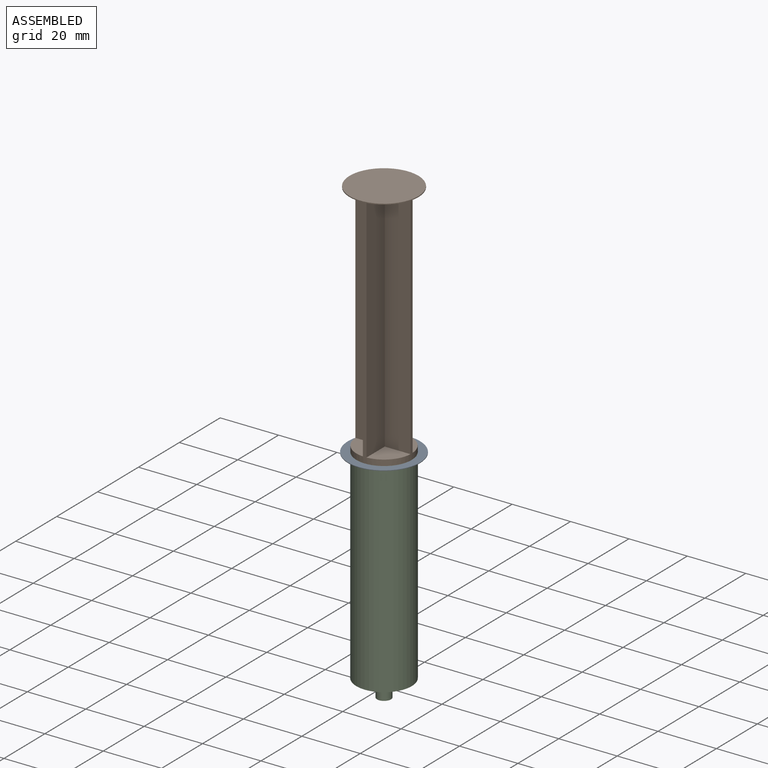
[diagram: assembled view]
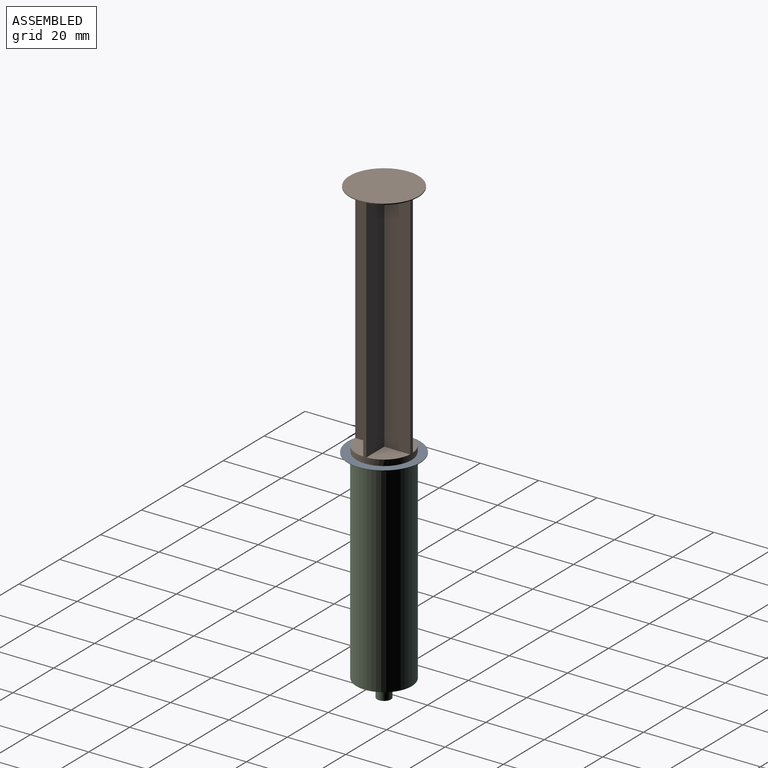
[diagram: assembled view, second angle]
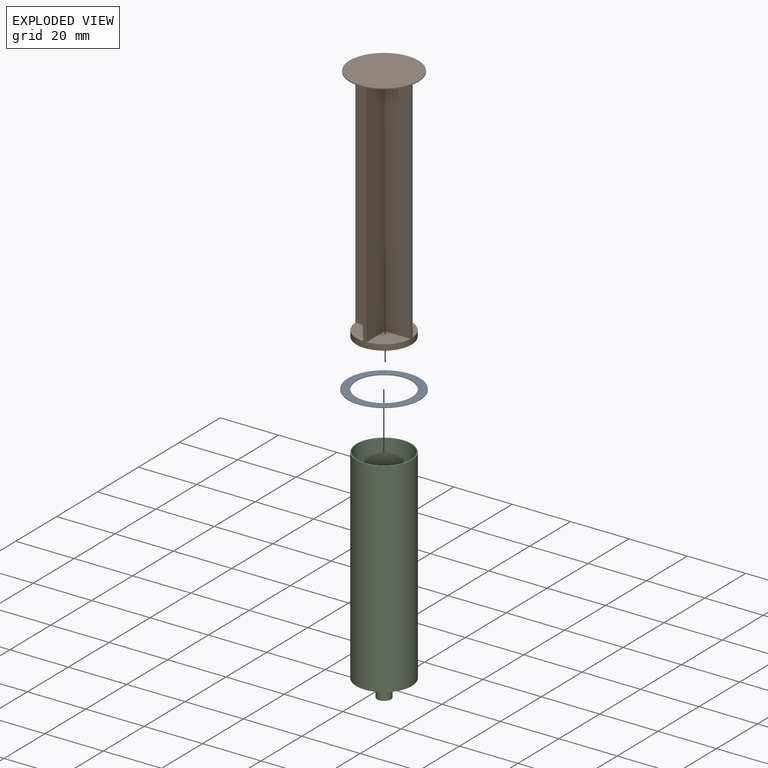
[diagram: exploded view]
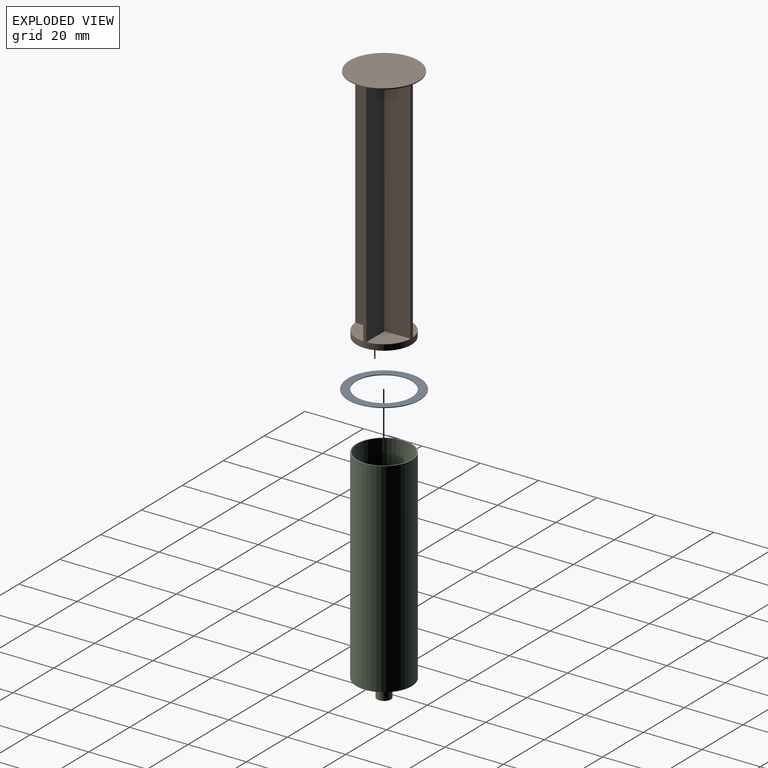
[diagram: exploded view, second angle]
ASSEMBLY  parts=3 mates=2
PART A: 4 faces, bbox 24.7x0.2x24.7 mm
  f0: cylinder r=9.5mm len=19mm, axis (0,1,0), area 11.9mm2, adj f2,f3
  f1: cylinder r=12.34mm len=24.68mm, axis (0,1,0), area 15.5mm2, adj f2,f3
  f2: plane 24.68x24.68mm, normal (0,-1,0), area 195mm2, adj f0,f1
  f3: plane 24.68x24.68mm, normal (0,1,0), area 195mm2, adj f0,f1
PART B: 23 faces, bbox 23.6x23.6x82.3 mm
  f0: plane 8.9x8.8mm, normal (0,0,-1), area 59.5mm2, adj f5,f11,f12
  f1: plane 1.21x0.02mm, normal (0,0,-1), area 0mm2, adj f5,f13
  f2: plane 1.05x0.01mm, normal (0,0,-1), area 0mm2, adj f5,f10
  f3: plane 9.96x8.85mm, normal (0,0,-1), area 59.8mm2, adj f5,f14,f15,f16
  f4: plane 8.9x8.8mm, normal (0,0,-1), area 59.5mm2, adj f5,f8,f9
  f5: cylinder r=9.45mm len=82mm, axis (0,0,-1), area 121.8mm2, adj f0,f1,f2,f3,f4,f6,f7,f9
  f6: plane 18.9x18.9mm, normal (0,0,1), area 280.6mm2, adj f5
  f7: plane 10.07x8.92mm, normal (0,0,-1), area 59.8mm2, adj f5,f17,f18,f19
  f8: plane 80x8.9mm, normal (-1,0,0), area 712mm2, adj f4,f9,f19,f20
  f9: plane 80x8.8mm, normal (0,-1,0), area 703.8mm2, adj f4,f5,f8,f20
  f10: plane 80x1.05mm, normal (-1,0,0), area 84.2mm2, adj f2,f5,f11,f20
  f11: plane 80x8.8mm, normal (0,1,0), area 703.8mm2, adj f0,f10,f12,f20
  f12: plane 80x8.9mm, normal (-1,0,0), area 712.2mm2, adj f0,f5,f11,f20
  f13: plane 80x1.21mm, normal (0,1,0), area 96.4mm2, adj f1,f5,f14,f20
  f14: plane 80x8.9mm, normal (1,0,0), area 712.4mm2, adj f3,f13,f15,f20
  f15: plane 80x8.83mm, normal (0,1,0), area 706.6mm2, adj f3,f14,f16,f20
  f16: plane 80x1.05mm, normal (1,0,0), area 84.4mm2, adj f3,f15,f17,f20
  f17: plane 80x8.83mm, normal (0,-1,0), area 706.6mm2, adj f7,f16,f18,f20
  f18: plane 80x8.9mm, normal (1,0,0), area 712mm2, adj f7,f17,f19,f20
  f19: plane 80x1.24mm, normal (0,-1,0), area 99.3mm2, adj f7,f8,f18,f20
  f20: plane 23.61x23.61mm, normal (0,0,1), area 395.6mm2, adj f5,f8,f9,f10,f11,f12,f13,f14
  f21: cylinder r=11.8mm len=23.61mm, axis (0,0,1), area 22.2mm2, adj f20,f22
  f22: plane 23.61x23.61mm, normal (0,0,-1), area 437.6mm2, adj f21
PART C: 8 faces, bbox 19x76x19 mm
  f0: cylinder r=9.5mm len=70mm, axis (0,1,0), area 4178.3mm2, adj f1,f2
  f1: plane 19x19mm, normal (0,-1,0), area 17.6mm2, adj f0,f3
  f2: plane 19x19mm, normal (0,1,0), area 265.6mm2, adj f0,f5
  f3: cylinder r=9.2mm len=68mm, axis (0,-1,0), area 3930.8mm2, adj f1,f4
  f4: plane 18.4x18.4mm, normal (0,-1,0), area 250.8mm2, adj f3,f7
  f5: cylinder r=2.39mm len=6mm, axis (0,-1,0), area 90mm2, adj f2,f6
  f6: plane 4.77x4.77mm, normal (0,1,0), area 2.8mm2, adj f5,f7
  f7: cylinder r=2.19mm len=8mm, axis (0,1,0), area 110.1mm2, adj f4,f6
PLACE A rot(axis=(-1,0,0),90deg) t=(-12.91,30.09,-15.27)mm
PLACE B rot(axis=(1,0,0),180deg) t=(-12.91,30.09,56.93)mm
PLACE C rot(axis=(-1,0,0),90deg) t=(-12.91,30.09,-15.07)mm
MATE slider A.f1 <-> C.f3  axis (0,0,1) through (-12.91,30.09,54.93)mm
MATE slider B.f5 <-> C.f3  axis (0,0,-1) through (-12.91,30.09,54.93)mm
